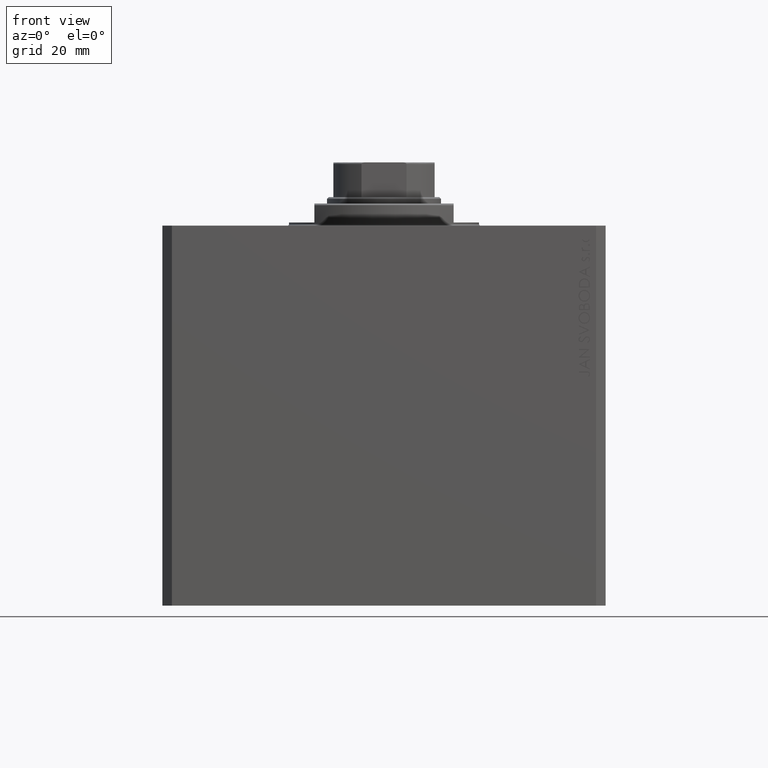
[diagram: clean part render]
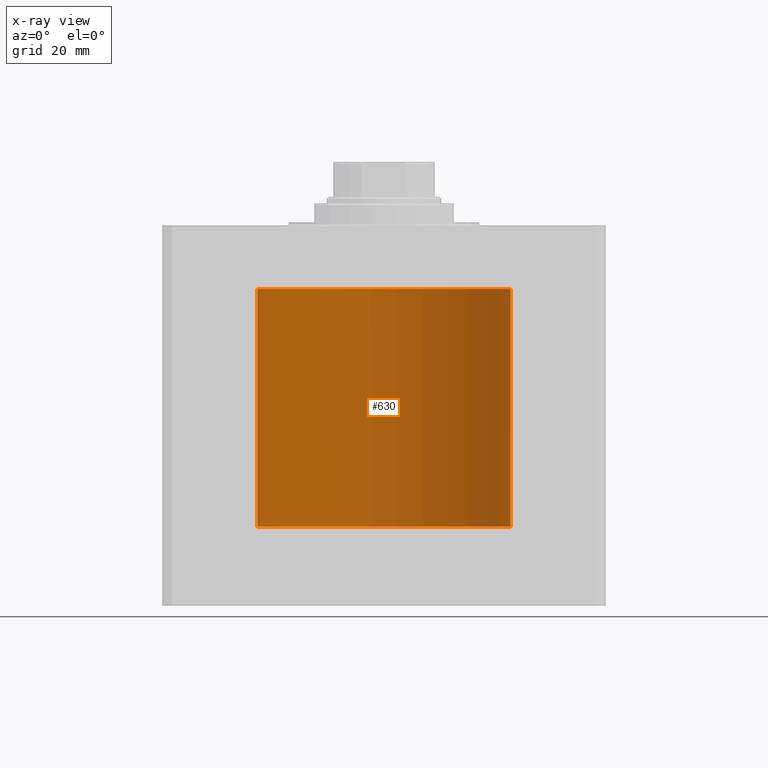
[diagram: x-ray — body ghosted, one internal face saturated and labeled with its STEP entity id]
A machine part, front view, then the same camera in x-ray: the body is ghosted and one INTERNAL B-rep face — a face not visible from any outside direction — is saturated and labeled: STEP entity #630.
In plain terms, the highlighted cylindrical surface (partial cylindrical patch) has radius 40 mm, axis along (0, 0, 1).
Its self-contained STEP definition (entity closure, byte-faithful):
#193 = CARTESIAN_POINT ( 'NONE',  ( 40.00000000000000000, 0.000000000000000000, -20.00000000000000355 ) ) ;
#630 = ADVANCED_FACE ( 'NONE', ( #14188 ), #24695, .F. ) ;
#1398 = EDGE_CURVE ( 'NONE', #30337, #13269, #24736, .T. ) ;
#1812 = CARTESIAN_POINT ( 'NONE',  ( 39.98154439070758315, 1.219772309801767651, -83.40967826248693484 ) ) ;
#1988 = ORIENTED_EDGE ( 'NONE', *, *, #40562, .T. ) ;
#2151 = CARTESIAN_POINT ( 'NONE',  ( -39.99683256694736144, 0.5194325103739407812, -36.93578600311449378 ) ) ;
#2269 = LINE ( 'NONE', #16584, #26004 ) ;
#2394 = CARTESIAN_POINT ( 'NONE',  ( -39.95269218207678819, 1.947396949689283119, -34.47509777723391977 ) ) ;
#2741 = VERTEX_POINT ( 'NONE', #15624 ) ;
#2861 = CARTESIAN_POINT ( 'NONE',  ( -39.96240535388719906, 1.735341415802265086, -36.00278343108410439 ) ) ;
#2991 = CIRCLE ( 'NONE', #6031, 40.00000000000000000 ) ;
#3324 = ORIENTED_EDGE ( 'NONE', *, *, #1398, .T. ) ;
#3586 = VECTOR ( 'NONE', #28080, 1000.000000000000000 ) ;
#4545 = DIRECTION ( 'NONE',  ( 1.000000000000000000, 0.000000000000000000, 0.000000000000000000 ) ) ;
#5024 = CARTESIAN_POINT ( 'NONE',  ( -40.00000000000000000, 4.898587196589413026E-15, -95.00000000000000000 ) ) ;
#5523 = B_SPLINE_CURVE_WITH_KNOTS ( 'NONE', 3,
 ( #24802, #23863, #46071, #45827, #28149, #16702, #6669, #21231, #38675, #20765, #21004, #2394, #35565, #31499, #35798, #35333, #17643, #13111, #2861, #38444, #20289, #17402, #31966, #32205, #27915, #46779, #2151, #27435, #42009, #42251 ),
 .UNSPECIFIED., .F., .F.,
 ( 4, 2, 2, 2, 2, 2, 2, 2, 2, 2, 2, 2, 2, 2, 4 ),
 ( 3.087105484439743043E-19, 0.0003908679763826832377, 0.0007817359527653661502, 0.001172603929148049009, 0.001563471905530731867, 0.002345207858296083706, 0.003126943811061435544, 0.003517811787444111681, 0.003908679763826786516, 0.004299547740209463086, 0.004690415716592138788, 0.005081283692974815358, 0.005472151669357490193, 0.005863019645740165896, 0.006253887622122840731 ),
 .UNSPECIFIED. ) ;
#6031 = AXIS2_PLACEMENT_3D ( 'NONE', #10825, #14413, #22041 ) ;
#6086 = DIRECTION ( 'NONE',  ( -0.000000000000000000, -0.000000000000000000, 1.000000000000000000 ) ) ;
#6131 = CARTESIAN_POINT ( 'NONE',  ( 40.00000000000000000, -7.123019543693126097E-24, -82.99999999999998579 ) ) ;
#6199 = ORIENTED_EDGE ( 'NONE', *, *, #11840, .T. ) ;
#6599 = ORIENTED_EDGE ( 'NONE', *, *, #35483, .T. ) ;
#6669 = CARTESIAN_POINT ( 'NONE',  ( -39.98759801293407179, 1.001913486779978824, -33.26412727956110871 ) ) ;
#6712 = EDGE_CURVE ( 'NONE', #29132, #33353, #2269, .T. ) ;
#7038 = VECTOR ( 'NONE', #14395, 1000.000000000000000 ) ;
#7804 = ORIENTED_EDGE ( 'NONE', *, *, #27143, .T. ) ;
#8102 = CARTESIAN_POINT ( 'NONE',  ( 0.000000000000000000, 0.000000000000000000, -95.00000000000000000 ) ) ;
#8446 = CARTESIAN_POINT ( 'NONE',  ( 40.00000000000000000, 3.022137594547156248E-17, -87.00000000000000000 ) ) ;
#8891 = CARTESIAN_POINT ( 'NONE',  ( 39.99685149082506541, 0.5179001791355952733, -86.93617508912632275 ) ) ;
#9113 = CARTESIAN_POINT ( 'NONE',  ( 39.99999999999999289, 0.1321969090936832014, -87.00000000000001421 ) ) ;
#9824 = CARTESIAN_POINT ( 'NONE',  ( 40.00000000000000000, 3.022137594547156248E-17, -87.00000000000000000 ) ) ;
#10350 = CARTESIAN_POINT ( 'NONE',  ( -40.00000000000000000, 3.176717991102973922E-16, -32.99999999999999289 ) ) ;
#10590 = CARTESIAN_POINT ( 'NONE',  ( 0.000000000000000000, 0.000000000000000000, -95.00000000000000000 ) ) ;
#10825 = CARTESIAN_POINT ( 'NONE',  ( 0.000000000000000000, 0.000000000000000000, -20.00000000000000355 ) ) ;
#11840 = EDGE_CURVE ( 'NONE', #43392, #43999, #12651, .T. ) ;
#12651 = B_SPLINE_CURVE_WITH_KNOTS ( 'NONE', 3,
 ( #42846, #13483, #27805, #31624, #24215, #46422, #34975, #20408, #41891, #16592, #1812, #45956, #38566, #13710, #16365, #31857, #24454, #17070 ),
 .UNSPECIFIED., .F., .F.,
 ( 4, 2, 2, 2, 2, 2, 2, 2, 4 ),
 ( 0.003127655752042789172, 0.003518434735802910326, 0.003909213719563031479, 0.004299992703323152199, 0.004690771687083273786, 0.005081550670843395373, 0.005472329654603516093, 0.005863108638363636813, 0.006253887622123758400 ),
 .UNSPECIFIED. ) ;
#13111 = CARTESIAN_POINT ( 'NONE',  ( -39.95960167186748890, 1.797984772084965543, -35.88567634638035742 ) ) ;
#13269 = VERTEX_POINT ( 'NONE', #8446 ) ;
#13483 = CARTESIAN_POINT ( 'NONE',  ( 39.94996871087634815, 2.000000000000458300, -84.86955743139924380 ) ) ;
#13710 = CARTESIAN_POINT ( 'NONE',  ( 39.99499935316635657, 0.6439817867486670178, -83.10197867874718725 ) ) ;
#13948 = VECTOR ( 'NONE', #19569, 1000.000000000000000 ) ;
#14164 = CARTESIAN_POINT ( 'NONE',  ( 40.00000000000000000, 0.000000000000000000, -95.00000000000000000 ) ) ;
#14188 = FACE_OUTER_BOUND ( 'NONE', #36082, .T. ) ;
#14395 = DIRECTION ( 'NONE',  ( -0.000000000000000000, -0.000000000000000000, 1.000000000000000000 ) ) ;
#14413 = DIRECTION ( 'NONE',  ( 0.000000000000000000, 0.000000000000000000, 1.000000000000000000 ) ) ;
#14555 = B_SPLINE_CURVE_WITH_KNOTS ( 'NONE', 3,
 ( #9824, #9113, #45890, #8891, #23448, #31561, #38738, #34688, #20581, #16766, #16537, #24392, #20834, #46137 ),
 .UNSPECIFIED., .F., .F.,
 ( 4, 2, 2, 2, 2, 2, 4 ),
 ( 2.936885669105128817E-20, 0.0003909569690053489718, 0.0007819139380106978352, 0.001172870907016046373, 0.001563827876021395020, 0.002345741814032091879, 0.003127655752042789172 ),
 .UNSPECIFIED. ) ;
#14759 = EDGE_CURVE ( 'NONE', #2741, #18137, #40839, .T. ) ;
#15538 = CIRCLE ( 'NONE', #42204, 40.00000000000000000 ) ;
#15624 = CARTESIAN_POINT ( 'NONE',  ( -40.00000000000000000, 4.898587196589413026E-15, -95.00000000000000000 ) ) ;
#16365 = CARTESIAN_POINT ( 'NONE',  ( 39.99683397345101810, 0.5193173888100585112, -83.06418508701626990 ) ) ;
#16537 = CARTESIAN_POINT ( 'NONE',  ( 39.96190461752344447, 1.748181485672914093, -86.00586757298763985 ) ) ;
#16584 = CARTESIAN_POINT ( 'NONE',  ( -40.00000000000000000, 4.898587196589413026E-15, -95.00000000000000000 ) ) ;
#16592 = CARTESIAN_POINT ( 'NONE',  ( 39.97829218842755949, 1.320937632928927741, -83.49250256667733083 ) ) ;
#16702 = CARTESIAN_POINT ( 'NONE',  ( -39.99034680283174481, 0.8870373003876257378, -33.20268175905523123 ) ) ;
#16766 = CARTESIAN_POINT ( 'NONE',  ( 39.96844549051295559, 1.599199597524137317, -86.22909439486065253 ) ) ;
#17070 = CARTESIAN_POINT ( 'NONE',  ( 40.00000000000000000, -7.123019543693126097E-24, -82.99999999999998579 ) ) ;
#17402 = CARTESIAN_POINT ( 'NONE',  ( -39.97828381824886890, 1.321191049141055895, -36.50727762807592569 ) ) ;
#17643 = CARTESIAN_POINT ( 'NONE',  ( -39.95496761534566588, 1.898177513206617872, -35.64350132831550155 ) ) ;
#18137 = VERTEX_POINT ( 'NONE', #34135 ) ;
#19569 = DIRECTION ( 'NONE',  ( -0.000000000000000000, -0.000000000000000000, 1.000000000000000000 ) ) ;
#19619 = CARTESIAN_POINT ( 'NONE',  ( 39.94996871087634105, 2.000000000000458300, -84.99999999999998579 ) ) ;
#20289 = CARTESIAN_POINT ( 'NONE',  ( -39.97167824115165757, 1.507866514858795748, -36.32051891686420220 ) ) ;
#20408 = CARTESIAN_POINT ( 'NONE',  ( 39.96844091090332540, 1.590277861643260238, -83.78016690258999688 ) ) ;
#20581 = CARTESIAN_POINT ( 'NONE',  ( 39.97823849595685175, 1.322484529437312650, -86.50600888624524032 ) ) ;
#20765 = CARTESIAN_POINT ( 'NONE',  ( -39.96845582698919941, 1.598940400393649819, -33.77058047739597413 ) ) ;
#20834 = CARTESIAN_POINT ( 'NONE',  ( 39.94996871087634105, 2.000000000000458300, -85.26100396064657616 ) ) ;
#21004 = CARTESIAN_POINT ( 'NONE',  ( -39.96191547756571794, 1.747935593588226810, -33.99372052401368194 ) ) ;
#21231 = CARTESIAN_POINT ( 'NONE',  ( -39.98155931191828927, 1.219319673654558844, -33.40929441127704536 ) ) ;
#22041 = DIRECTION ( 'NONE',  ( 1.000000000000000000, 0.000000000000000000, 0.000000000000000000 ) ) ;
#23448 = CARTESIAN_POINT ( 'NONE',  ( 39.99498341981901461, 0.6449644383382160395, -86.89768711383446487 ) ) ;
#23863 = CARTESIAN_POINT ( 'NONE',  ( -40.00000000000000000, 0.1321668174197086765, -32.99999999999998579 ) ) ;
#24215 = CARTESIAN_POINT ( 'NONE',  ( 39.95497632853201964, 1.897994695932949671, -84.35596494936800127 ) ) ;
#24392 = CARTESIAN_POINT ( 'NONE',  ( 39.95268414756683484, 1.947559645210714674, -85.52432767386868306 ) ) ;
#24454 = CARTESIAN_POINT ( 'NONE',  ( 40.00000000000000000, 0.1305111693278485918, -82.99999999999994316 ) ) ;
#24695 = CYLINDRICAL_SURFACE ( 'NONE', #41675, 40.00000000000000000 ) ;
#24736 = LINE ( 'NONE', #24967, #3586 ) ;
#24802 = CARTESIAN_POINT ( 'NONE',  ( -40.00000000000000000, 3.176717991102973922E-16, -32.99999999999999289 ) ) ;
#24967 = CARTESIAN_POINT ( 'NONE',  ( 40.00000000000000000, 0.000000000000000000, -95.00000000000000000 ) ) ;
#26004 = VECTOR ( 'NONE', #6086, 1000.000000000000000 ) ;
#26414 = ORIENTED_EDGE ( 'NONE', *, *, #14759, .F. ) ;
#27064 = ORIENTED_EDGE ( 'NONE', *, *, #41423, .T. ) ;
#27143 = EDGE_CURVE ( 'NONE', #43885, #33353, #2991, .T. ) ;
#27435 = CARTESIAN_POINT ( 'NONE',  ( -39.99933990797904926, 0.2631205944229108584, -36.98691850247509905 ) ) ;
#27805 = CARTESIAN_POINT ( 'NONE',  ( 39.95062818562870888, 1.986948187989950876, -84.73706829020871112 ) ) ;
#27915 = CARTESIAN_POINT ( 'NONE',  ( -39.99035901532459292, 0.8864973422255639779, -36.79758953480038031 ) ) ;
#28080 = DIRECTION ( 'NONE',  ( -0.000000000000000000, -0.000000000000000000, 1.000000000000000000 ) ) ;
#28149 = CARTESIAN_POINT ( 'NONE',  ( -39.99498566902682484, 0.6448208412979499204, -33.10226605812628264 ) ) ;
#29132 = VERTEX_POINT ( 'NONE', #10350 ) ;
#30337 = VERTEX_POINT ( 'NONE', #35687 ) ;
#30847 = ORIENTED_EDGE ( 'NONE', *, *, #42842, .F. ) ;
#31499 = CARTESIAN_POINT ( 'NONE',  ( -39.94996638891713303, 2.000046381102384974, -35.12975685824790872 ) ) ;
#31561 = CARTESIAN_POINT ( 'NONE',  ( 39.99034271445660949, 0.8872245818428182718, -86.79722787929314620 ) ) ;
#31624 = CARTESIAN_POINT ( 'NONE',  ( 39.95313906850238794, 1.935803218567043738, -84.48061374223441078 ) ) ;
#31857 = CARTESIAN_POINT ( 'NONE',  ( 39.99934021390485839, 0.2630606439975807787, -83.01307548577453588 ) ) ;
#31966 = CARTESIAN_POINT ( 'NONE',  ( -39.98153721162278629, 1.220008905300839608, -36.59014263787319976 ) ) ;
#32205 = CARTESIAN_POINT ( 'NONE',  ( -39.98755980670525645, 1.003394358445550694, -36.73498561931656781 ) ) ;
#33353 = VERTEX_POINT ( 'NONE', #43155 ) ;
#34135 = CARTESIAN_POINT ( 'NONE',  ( -40.00000000000000000, 4.898587189460959019E-15, -37.00000000000000000 ) ) ;
#34688 = CARTESIAN_POINT ( 'NONE',  ( 39.98155206755719604, 1.219558643123237696, -86.59052494877072093 ) ) ;
#34975 = CARTESIAN_POINT ( 'NONE',  ( 39.96241579707638181, 1.735101203729181307, -83.99680496632646509 ) ) ;
#35333 = CARTESIAN_POINT ( 'NONE',  ( -39.95313149897170746, 1.935958995947111294, -35.51881372483516941 ) ) ;
#35483 = EDGE_CURVE ( 'NONE', #43999, #43885, #40183, .T. ) ;
#35565 = CARTESIAN_POINT ( 'NONE',  ( -39.94997337387901126, 1.999906856589179771, -34.73834748183895726 ) ) ;
#35687 = CARTESIAN_POINT ( 'NONE',  ( 40.00000000000000000, 0.000000000000000000, -95.00000000000000000 ) ) ;
#35798 = CARTESIAN_POINT ( 'NONE',  ( -39.95062375609131777, 1.987036815800614642, -35.26227773012374911 ) ) ;
#36082 = EDGE_LOOP ( 'NONE', ( #26414, #30847, #3324, #27064, #6199, #6599, #7804, #38586, #1988 ) ) ;
#37242 = DIRECTION ( 'NONE',  ( 0.000000000000000000, 0.000000000000000000, 1.000000000000000000 ) ) ;
#38444 = CARTESIAN_POINT ( 'NONE',  ( -39.96843077430287394, 1.590532281203076215, -36.21950461315501002 ) ) ;
#38566 = CARTESIAN_POINT ( 'NONE',  ( 39.99036315117484719, 0.8863074176598244591, -83.20231909422288652 ) ) ;
#38586 = ORIENTED_EDGE ( 'NONE', *, *, #6712, .F. ) ;
#38675 = CARTESIAN_POINT ( 'NONE',  ( -39.97824670274066960, 1.322236164346118237, -33.49377550898345390 ) ) ;
#38738 = CARTESIAN_POINT ( 'NONE',  ( 39.98759288254257172, 1.002119990237823499, -86.73575586470111887 ) ) ;
#40183 = LINE ( 'NONE', #14164, #7038 ) ;
#40562 = EDGE_CURVE ( 'NONE', #29132, #18137, #5523, .T. ) ;
#40839 = LINE ( 'NONE', #5024, #13948 ) ;
#41423 = EDGE_CURVE ( 'NONE', #13269, #43392, #14555, .T. ) ;
#41675 = AXIS2_PLACEMENT_3D ( 'NONE', #10590, #43543, #43302 ) ;
#41891 = CARTESIAN_POINT ( 'NONE',  ( 39.97168791869498250, 1.507609851330703465, -83.67919067321091120 ) ) ;
#42009 = CARTESIAN_POINT ( 'NONE',  ( -39.99999999999999289, 0.1305408908116475475, -36.99999999999998579 ) ) ;
#42204 = AXIS2_PLACEMENT_3D ( 'NONE', #8102, #37242, #4545 ) ;
#42251 = CARTESIAN_POINT ( 'NONE',  ( -40.00000000000000000, 4.898587189460959019E-15, -37.00000000000000000 ) ) ;
#42842 = EDGE_CURVE ( 'NONE', #30337, #2741, #15538, .T. ) ;
#42846 = CARTESIAN_POINT ( 'NONE',  ( 39.94996871087634105, 2.000000000000458300, -84.99999999999998579 ) ) ;
#43155 = CARTESIAN_POINT ( 'NONE',  ( -40.00000000000000000, 4.898587196589413026E-15, -20.00000000000000355 ) ) ;
#43302 = DIRECTION ( 'NONE',  ( 1.000000000000000000, 0.000000000000000000, 0.000000000000000000 ) ) ;
#43392 = VERTEX_POINT ( 'NONE', #19619 ) ;
#43543 = DIRECTION ( 'NONE',  ( -0.000000000000000000, -0.000000000000000000, 1.000000000000000000 ) ) ;
#43885 = VERTEX_POINT ( 'NONE', #193 ) ;
#43999 = VERTEX_POINT ( 'NONE', #6131 ) ;
#45827 = CARTESIAN_POINT ( 'NONE',  ( -39.99685289554154366, 0.5177847365437173721, -33.06379604364708769 ) ) ;
#45890 = CARTESIAN_POINT ( 'NONE',  ( 39.99934513831946958, 0.2621798624261794664, -86.98702196541452736 ) ) ;
#45956 = CARTESIAN_POINT ( 'NONE',  ( 39.98756496795039794, 1.003187065221004648, -83.26489670948993194 ) ) ;
#46071 = CARTESIAN_POINT ( 'NONE',  ( -39.99934543628835826, 0.2621206772944133512, -33.01297218325230887 ) ) ;
#46137 = CARTESIAN_POINT ( 'NONE',  ( 39.94996871087634105, 2.000000000000458300, -84.99999999999998579 ) ) ;
#46422 = CARTESIAN_POINT ( 'NONE',  ( 39.95961195549606515, 1.797756837149760978, -84.11386492750068555 ) ) ;
#46779 = CARTESIAN_POINT ( 'NONE',  ( -39.99499715356421348, 0.6441229686298113322, -36.89797557273014661 ) ) ;